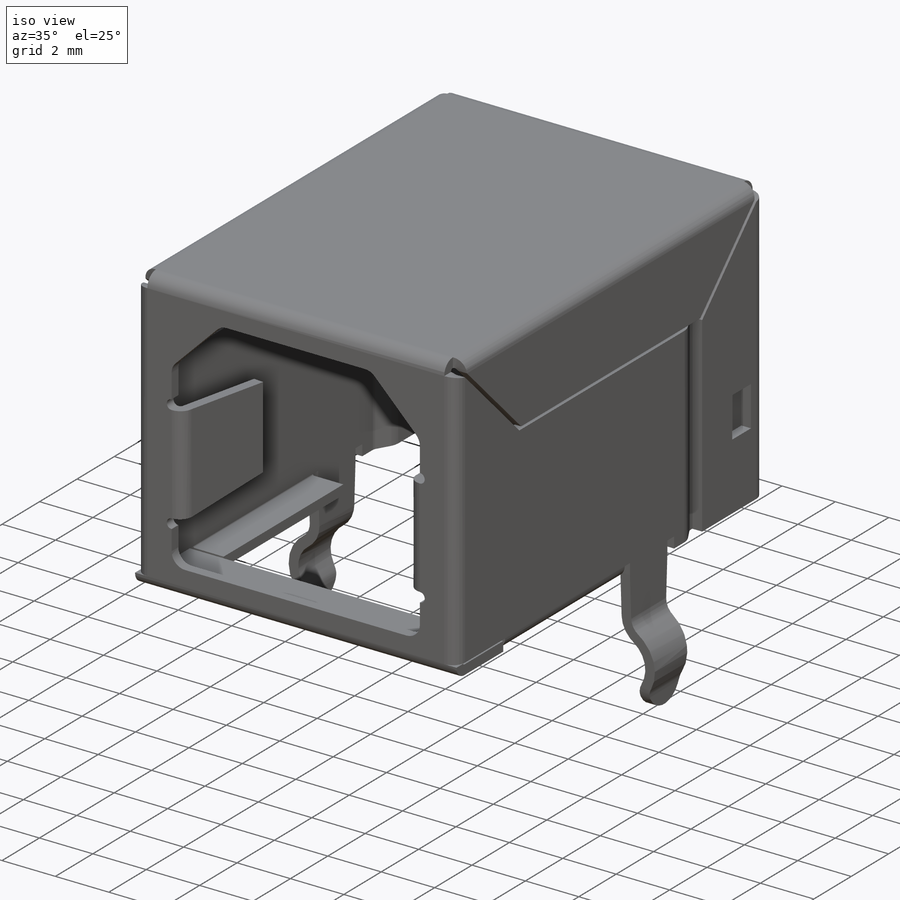
[diagram: iso view]
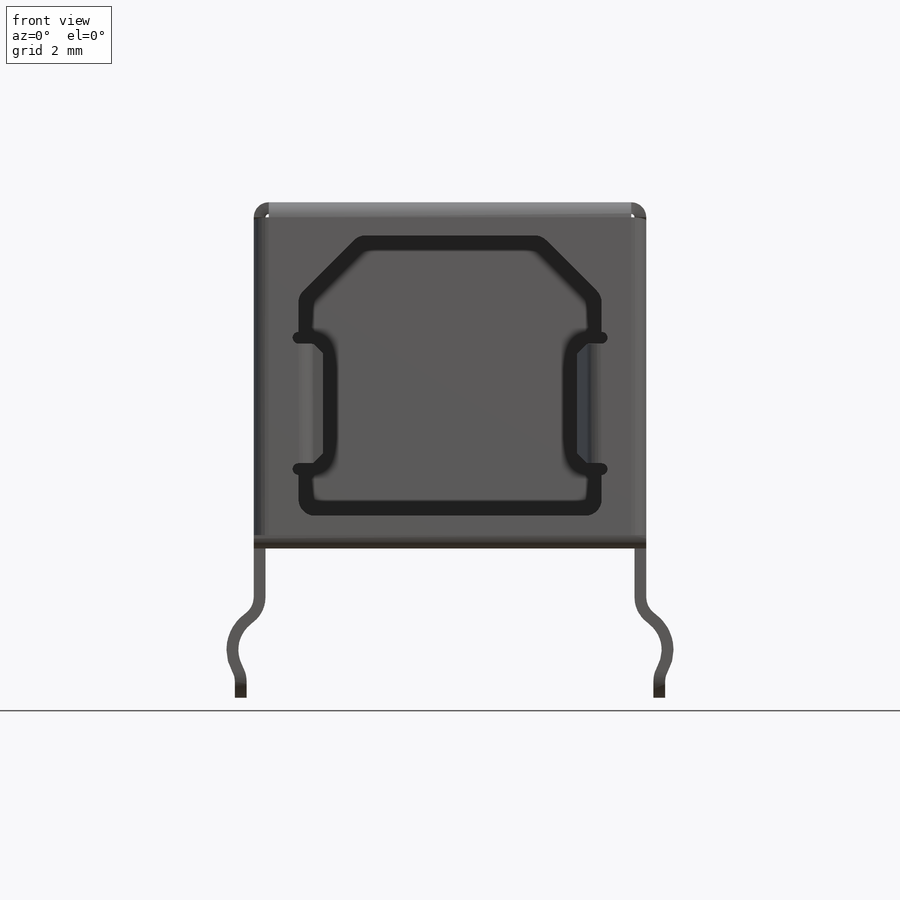
[diagram: front view]
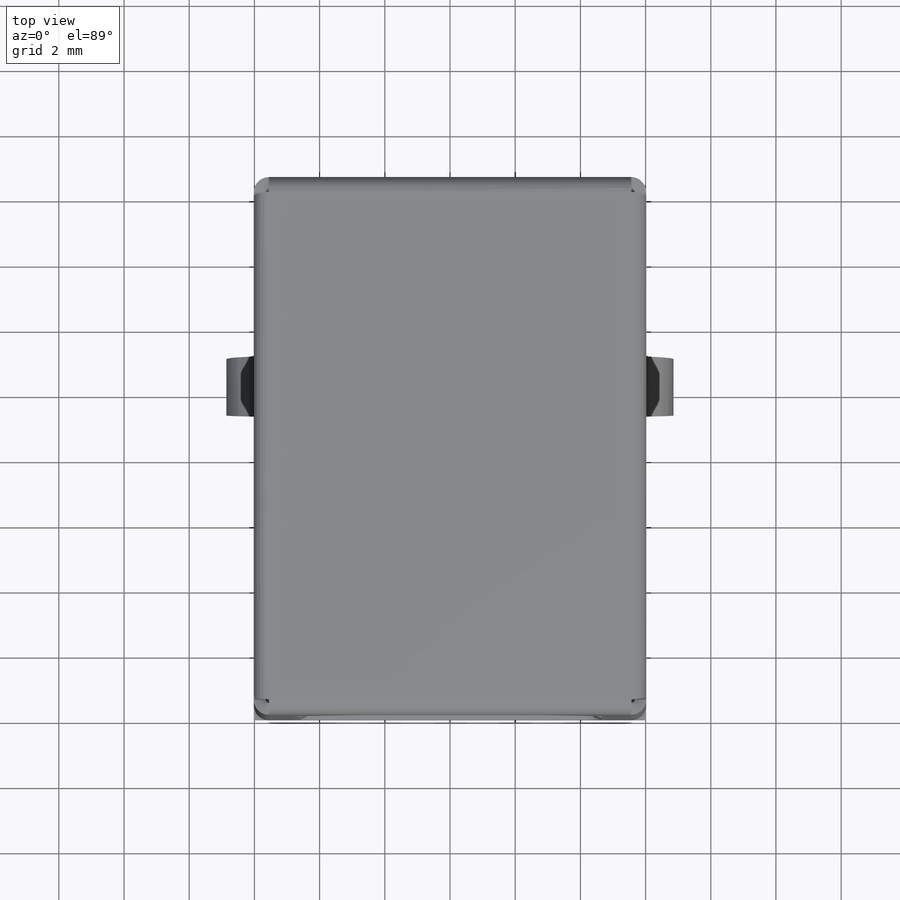
[diagram: top view]
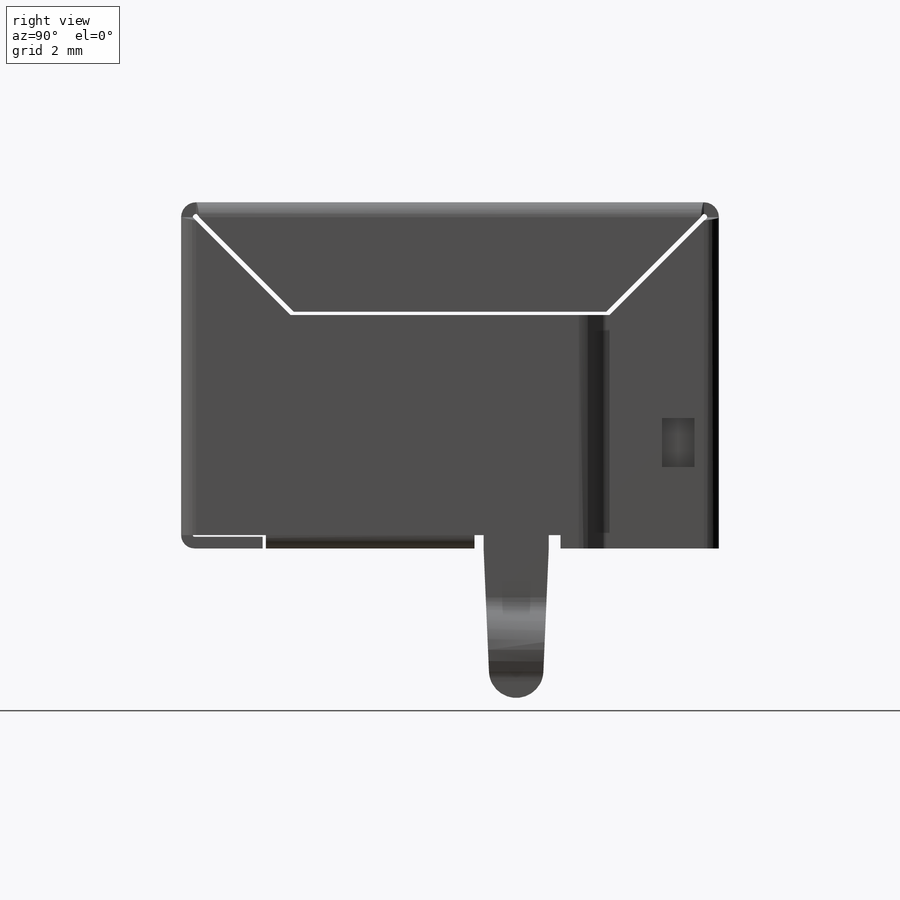
[diagram: right view]
SOLIDWORKS PART (.sldprt)
format: sldprt  version: not decoded by parser v0  size: 1,073,664 bytes
history: native  units: mm
features: sketch x27, sheet_metal_op x18, mirror x17, cut_extrude x5, extrude x3, material x1, plane x1 + 1 further entry (+13 scaffold rows collapsed; 3 parser-record rows omitted)
feature tree (89):
  scaffold x13  (default folders/planes/origin — collapsed)
  material  "Material <not specified>"
  sketch  "Sketch1"  dims[D1=12.04mm D2=6.02mm D3=10.16mm]
  sheet_metal_op  "Sheet-Metal1"
  sheet_metal_op  "Base-Flange1"
  sketch  "Sketch43"  dims[c1.D1=0.05mm c1.D4=90.0deg c1.D5=13.0 c1.D8=0.18mm c1.D9=0.18mm c2.D1=0.05mm c2.D2=500.0mm c2.D3=0.0mm c2.D6=10.0mm c2.D7=2.5mm c2.Edge-Flange1=0.0]
  sketch  "Sketch8"
  sketch  "Sketch9"
  sheet_metal_op  "EdgeBend1"
  sheet_metal_op  "EdgeBend2"  Edge-Flange9=0
  sketch  "Sketch48"  dims[D1=2.6mm D2=9.0mm]
  sketch  "Sketch49"  dims[D1=2.6mm D2=9.0mm]
  sheet_metal_op  "EdgeBend11"
  sheet_metal_op  "EdgeBend12"
  sketch  "Sketch50"  dims[D1=2.0mm D2=9.28mm D3=0.5mm D4=0.28mm D5=0.36mm D6=10.66mm]
  sketch  "Sketch51"
  extrude  "Boss-Extrude1"  Depth=0.36mm
  extrude  "Boss-Extrude2"  Depth=0.36mm
  sketch  "Sketch10"  dims[D1=12.2mm]
  parser-record x3  (decoder bookkeeping rows leaked as tree rows — omitted from the tree; the rows remain in map.json)
  sheet_metal_op  "JogBend1"
  sheet_metal_op  "JogBend2"
  sketch  "Sketch11"
  sheet_metal_op  "JogBend3"
  sheet_metal_op  "JogBend4"
  sketch  "Sketch12"  dims[c1.D1=16.0mm c2.D1=45.0deg c2.D2=3.0mm]
  cut_extrude  "Cut-Extrude1"  Depth=0 Edge-Flange2=0
  sketch  "Sketch15"
  sheet_metal_op  "EdgeBend3"  Edge-Flange3=0
  sketch  "Sketch22"  dims[c1.D1=~2.980013mm c2.D1=45.0deg c2.D2=3.0mm]
  sketch  "Sketch24"  dims[c1.D1=~2.813074mm c2.D1=45.0deg c2.D2=3.0mm c2.D3=~4.058816mm c3.D3=45.0deg]
  sheet_metal_op  "EdgeBend4"
  sheet_metal_op  "EdgeBend5"  Edge-Flange4=0
  sketch  "Sketch27"
  sheet_metal_op  "EdgeBend6"  Edge-Flange5=0
  sketch  "Sketch32"  dims[c1.D1=3.0mm c1.D2=~4.403263mm c2.D2=45.0deg]
  sketch  "Sketch33"  dims[c1.D1=3.0mm c1.D2=~4.101219mm c2.D2=45.0deg c2.D3=~3.835459mm c3.D3=45.0deg]
  sheet_metal_op  "EdgeBend7"
  sheet_metal_op  "EdgeBend8"
  sketch  "Sketch52"  dims[D1=1.0mm D2=1.5mm D3=4.0mm D4=1.5mm D5=15.75mm D6=0.75mm]
  cut_extrude  "Cut-Extrude3"  Depth=0.36mm
  sketch  "Sketch53"
  cut_extrude  "Cut-Extrude4"  Depth=0.36mm
  sketch  "Sketch54"  dims[c1.D7=0.18mm c1.D10=0.5mm c1.D1=~3.441522mm c2.D1=135.0deg c2.D2=8.6mm c2.D3=9.3mm c2.D4=4.65mm c2.D5=3.67mm c2.D6=2.25mm c2.D8=5.6mm c2.D9=1.0mm c2.D11=4.445mm]
  cut_extrude  "Cut-Extrude5"  Depth=0.36mm Edge-Flange10=0
  sketch  "Sketch61"  dims[c1.D1=~3.027911mm c2.D1=10.0deg c2.D2=3.5mm]
  sketch  "Sketch62"  dims[c1.D1=3.5mm c1.D2=3.0mm c2.D2=10.0deg]
  sheet_metal_op  "EdgeBend13"
  sheet_metal_op  "EdgeBend14"
  plane  "Plane1"
  sketch  "Sketch64"  dims[c1.D3=0.6mm c1.D4=0.6mm c1.D5=0.6mm c1.D7=1.0mm c1.D1=6.6mm c1.D2=15.2mm c1.D6=1.5mm c2.D7=1.3mm c2.D4=0.5mm]
  extrude  "Boss-Extrude3"  Depth=2mm
  mirror  "Mirror1"
  sketch  "Sketch65"  dims[c1.D5=1.48mm c1.D1=2.0mm c1.D2=0.1mm c1.D3=0.1mm c1.D4=3.75mm c2.D5=~3.889705mm c3.D5=5.0deg]
  cut_extrude  "Cut-Extrude6"  [1 undecoded]
  sketch  "Sketch66"  dims[D3=2.3mm D1=12.04mm D2=6.02mm D4=1.0mm]
  "Flat-Pattern1"
  sketch  "Bend-Lines1"
  sketch  "Bounding-Box1"
  mirror  "Flatten-<EdgeBend2>1"
  mirror  "Flatten-<JogBend1>1"
  mirror  "Flatten-<JogBend2>1"
  mirror  "Flatten-<JogBend3>1"
  mirror  "Flatten-<JogBend4>1"
  mirror  "Flatten-<EdgeBend3>1"
  mirror  "Flatten-<EdgeBend4>1"
  mirror  "Flatten-<EdgeBend5>1"
  mirror  "Flatten-<EdgeBend6>1"
  mirror  "Flatten-<EdgeBend7>1"
  mirror  "Flatten-<EdgeBend8>1"
  mirror  "Flatten-<EdgeBend10>1"
  mirror  "Flatten-<EdgeBend11>1"
  mirror  "Flatten-<EdgeBend12>1"
  mirror  "Flatten-<EdgeBend13>1"
  mirror  "Flatten-<EdgeBend14>1"
decode coverage: 29 of 70 modeling features carry decoded parameters; 1 rows unclassified (native names shown)
note: ~ marks probable driven/reference dimensions
note: 1 parameter value undecoded
note: suppression state not decoded; provenance and decode notes live in map.json
